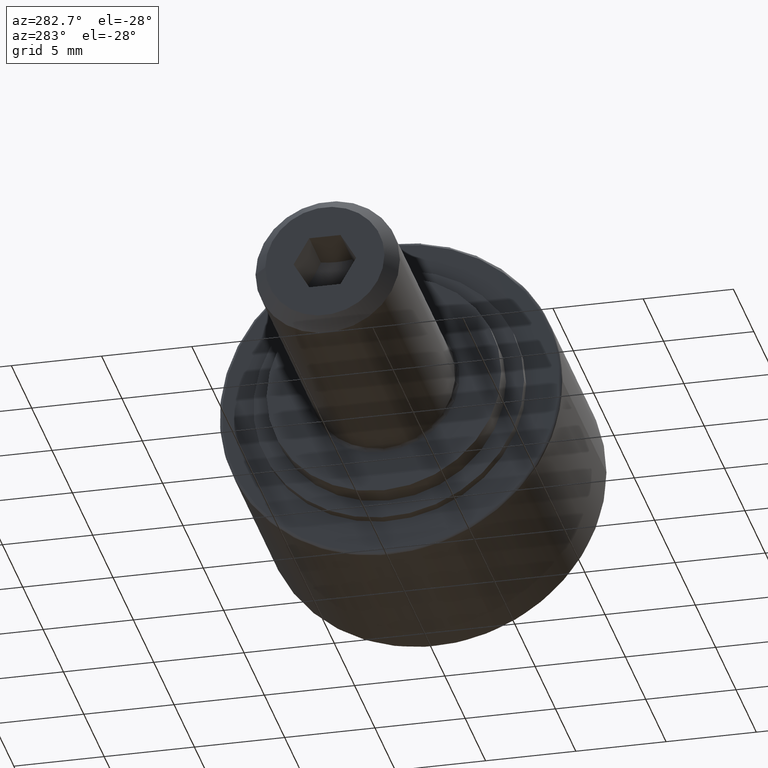
[diagram: clean part render]
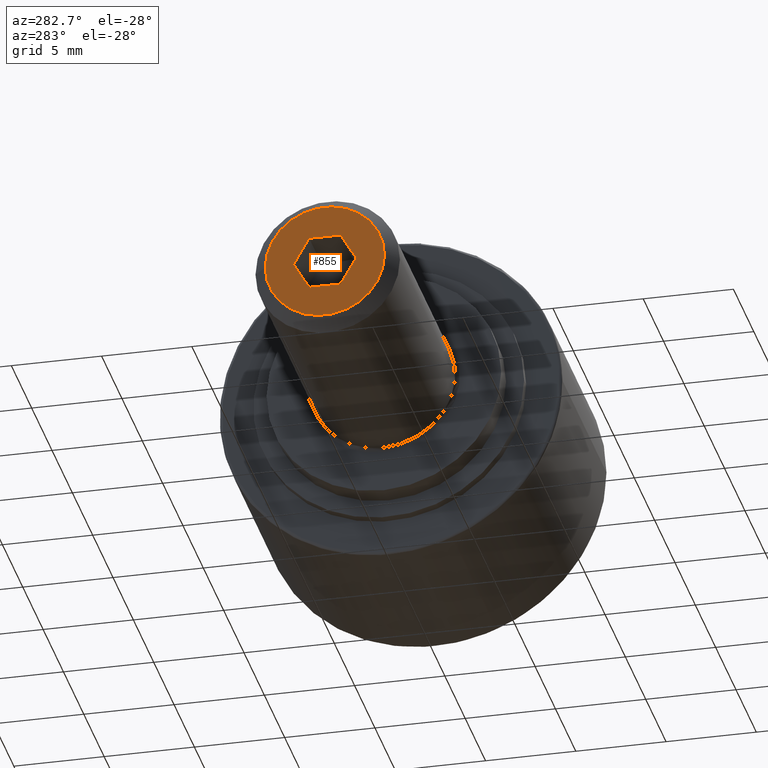
[diagram: same view with one face highlighted and labeled with its STEP entity id]
A machine part, auxiliary view. The second image highlights one B-rep face of the part: STEP entity #855.
In plain terms, the highlighted planar face has unit normal (1, 0, 0).
Its self-contained STEP definition (entity closure, byte-faithful):
#59=FACE_BOUND('',#182,.T.);
#76=PLANE('',#995);
#125=FACE_OUTER_BOUND('',#181,.T.);
#181=EDGE_LOOP('',(#617));
#182=EDGE_LOOP('',(#618,#619,#620,#621,#622,#623));
#254=LINE('',#1432,#298);
#255=LINE('',#1434,#299);
#256=LINE('',#1436,#300);
#257=LINE('',#1438,#301);
#258=LINE('',#1440,#302);
#259=LINE('',#1441,#303);
#298=VECTOR('',#1135,10.);
#299=VECTOR('',#1136,10.);
#300=VECTOR('',#1137,10.);
#301=VECTOR('',#1138,10.);
#302=VECTOR('',#1139,10.);
#303=VECTOR('',#1140,10.);
#340=CIRCLE('',#990,3.3);
#405=VERTEX_POINT('',#1418);
#409=VERTEX_POINT('',#1430);
#410=VERTEX_POINT('',#1431);
#411=VERTEX_POINT('',#1433);
#412=VERTEX_POINT('',#1435);
#413=VERTEX_POINT('',#1437);
#414=VERTEX_POINT('',#1439);
#487=EDGE_CURVE('',#405,#405,#340,.T.);
#493=EDGE_CURVE('',#409,#410,#254,.T.);
#494=EDGE_CURVE('',#410,#411,#255,.T.);
#495=EDGE_CURVE('',#411,#412,#256,.T.);
#496=EDGE_CURVE('',#412,#413,#257,.T.);
#497=EDGE_CURVE('',#413,#414,#258,.T.);
#498=EDGE_CURVE('',#414,#409,#259,.T.);
#617=ORIENTED_EDGE('',*,*,#487,.F.);
#618=ORIENTED_EDGE('',*,*,#493,.T.);
#619=ORIENTED_EDGE('',*,*,#494,.T.);
#620=ORIENTED_EDGE('',*,*,#495,.T.);
#621=ORIENTED_EDGE('',*,*,#496,.T.);
#622=ORIENTED_EDGE('',*,*,#497,.T.);
#623=ORIENTED_EDGE('',*,*,#498,.T.);
#855=ADVANCED_FACE('',(#125,#59),#76,.F.);
#990=AXIS2_PLACEMENT_3D('',#1419,#1121,#1122);
#995=AXIS2_PLACEMENT_3D('',#1429,#1133,#1134);
#1121=DIRECTION('center_axis',(1.,0.,0.));
#1122=DIRECTION('ref_axis',(0.,-1.,0.));
#1133=DIRECTION('center_axis',(1.,0.,0.));
#1134=DIRECTION('ref_axis',(0.,0.,-1.));
#1135=DIRECTION('',(0.,-1.,-3.20493781063927E-16));
#1136=DIRECTION('',(0.,-0.5,-0.866025403784439));
#1137=DIRECTION('',(0.,0.5,-0.866025403784439));
#1138=DIRECTION('',(0.,1.,0.));
#1139=DIRECTION('',(0.,0.5,0.866025403784439));
#1140=DIRECTION('',(0.,-0.5,0.866025403784439));
#1418=CARTESIAN_POINT('',(-14.5,3.3,4.04133443718627E-16));
#1419=CARTESIAN_POINT('Origin',(-14.5,0.,0.));
#1429=CARTESIAN_POINT('Origin',(-14.5,-2.72118023435153E-16,0.));
#1430=CARTESIAN_POINT('',(-14.5,0.866025403784438,1.5));
#1431=CARTESIAN_POINT('',(-14.5,-0.866025403784439,1.5));
#1432=CARTESIAN_POINT('',(-14.5,0.433012701892219,1.5));
#1433=CARTESIAN_POINT('',(-14.5,-1.73205080756888,-2.77555756156289E-16));
#1434=CARTESIAN_POINT('',(-14.5,-1.08253175473055,1.125));
#1435=CARTESIAN_POINT('',(-14.5,-0.866025403784438,-1.5));
#1436=CARTESIAN_POINT('',(-14.5,-1.51554445662277,-0.375));
#1437=CARTESIAN_POINT('',(-14.5,0.866025403784438,-1.5));
#1438=CARTESIAN_POINT('',(-14.5,-0.433012701892219,-1.5));
#1439=CARTESIAN_POINT('',(-14.5,1.73205080756888,-2.77555756156289E-16));
#1440=CARTESIAN_POINT('',(-14.5,1.08253175473055,-1.125));
#1441=CARTESIAN_POINT('',(-14.5,1.51554445662277,0.375));